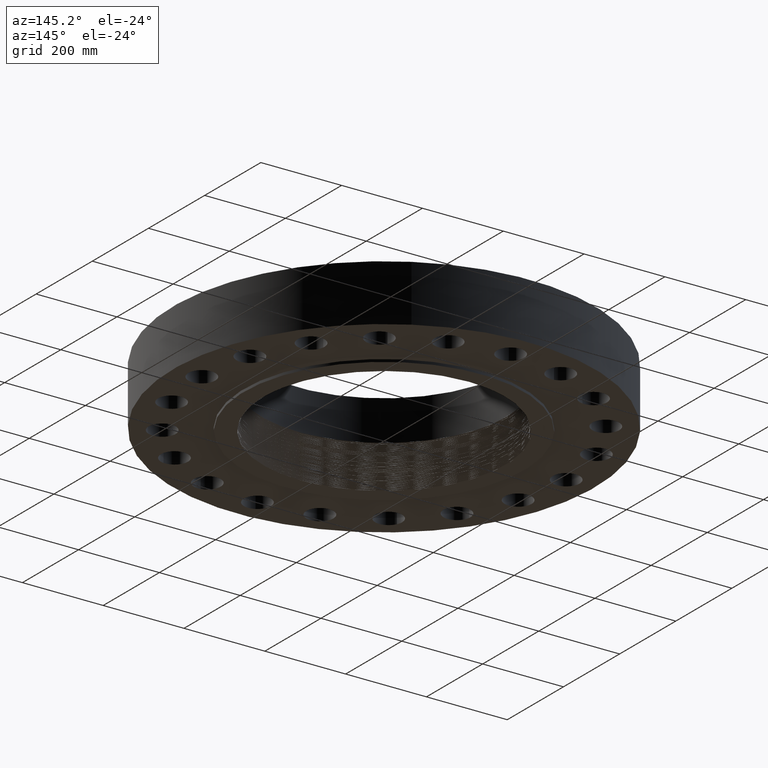
[diagram: clean part render]
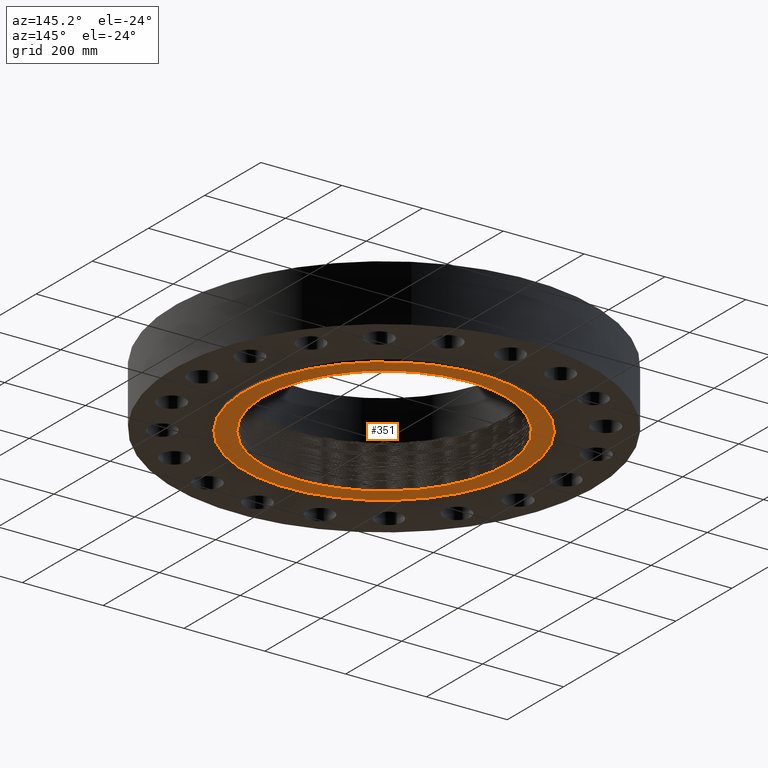
[diagram: same view with one face highlighted and labeled with its STEP entity id]
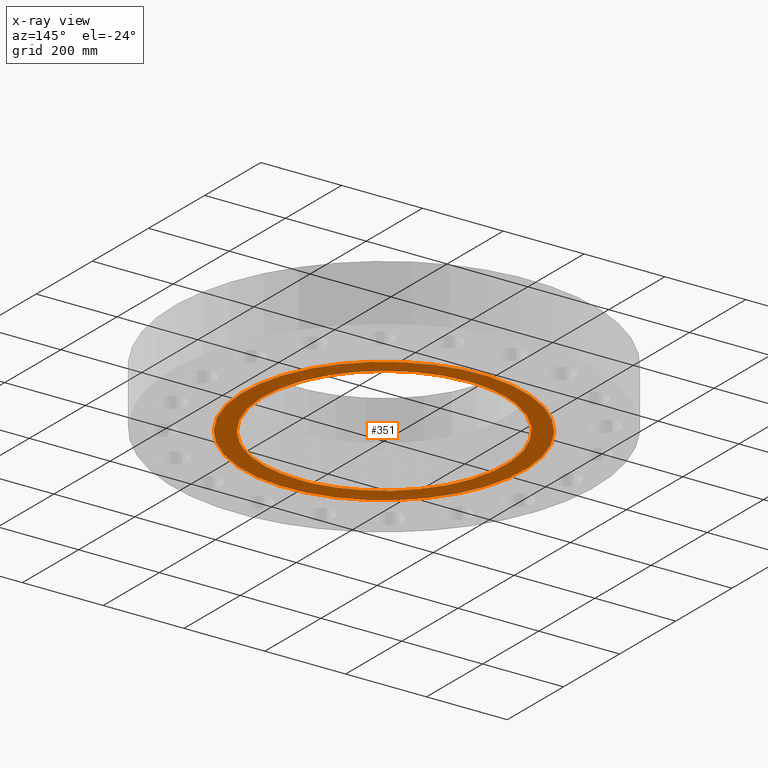
[diagram: x-ray of the same camera — body ghosted, the highlighted face saturated]
A machine part, auxiliary view. The second image highlights one B-rep face of the part: STEP entity #351.
The next image is the same camera in x-ray: the body ghosted, the highlighted face saturated — about 0% of this face is hidden behind the body in this view.
In plain terms, the highlighted planar face has unit normal (0, 0, -1).
Its self-contained STEP definition (entity closure, byte-faithful):
#198=AXIS2_PLACEMENT_3D('Plane Axis2P3D',#195,#196,#197) ;
#202=AXIS2_PLACEMENT_3D('Circle Axis2P3D',#200,#201,$) ;
#211=AXIS2_PLACEMENT_3D('Circle Axis2P3D',#209,#210,$) ;
#339=AXIS2_PLACEMENT_3D('Circle Axis2P3D',#337,#338,$) ;
#195=CARTESIAN_POINT('Axis2P3D Location',(0.,0.,-0.250000000001)) ;
#200=CARTESIAN_POINT('Axis2P3D Location',(0.,0.,-0.250000000001)) ;
#204=CARTESIAN_POINT('Vertex',(6.53217296351,11.9570624058,-0.250000000001)) ;
#206=CARTESIAN_POINT('Vertex',(-6.53217296351,-11.9570624058,-0.250000000001)) ;
#209=CARTESIAN_POINT('Axis2P3D Location',(0.,0.,-0.250000000001)) ;
#219=CARTESIAN_POINT('Control Point',(-0.40067917141,-11.742080255,-0.250000000001)) ;
#220=CARTESIAN_POINT('Control Point',(-0.320580324469,-11.745020565,-0.250000000001)) ;
#221=CARTESIAN_POINT('Control Point',(-0.240455237118,-11.747277888,-0.250000000001)) ;
#222=CARTESIAN_POINT('Control Point',(-0.160311765019,-11.7488519097,-0.250000000001)) ;
#223=CARTESIAN_POINT('Control Point',(-0.0801577796731,-11.7497424508,-0.250000000001)) ;
#224=CARTESIAN_POINT('Control Point',(-1.16580655687E-006,-11.7499494673,-0.250000000001)) ;
#225=CARTESIAN_POINT('Vertex',(-0.400679172377,-11.7420802446,-0.249999999994)) ;
#227=CARTESIAN_POINT('Vertex',(-1.16580655387E-006,-11.7499494673,-0.250000000001)) ;
#231=CARTESIAN_POINT('Control Point',(5.64049903507,-10.3248662781,-0.250000000001)) ;
#232=CARTESIAN_POINT('Control Point',(5.01537148239,-10.6642843557,-0.250000000001)) ;
#233=CARTESIAN_POINT('Control Point',(4.36463360789,-10.9564348584,-0.250000000001)) ;
#234=CARTESIAN_POINT('Control Point',(3.6930570051,-11.1987257352,-0.250000000001)) ;
#235=CARTESIAN_POINT('Control Point',(2.55678007978,-11.5138177216,-0.250000000001)) ;
#236=CARTESIAN_POINT('Control Point',(1.39220667039,-11.6846869741,-0.250000000001)) ;
#237=CARTESIAN_POINT('Control Point',(0.929052393091,-11.7293972463,-0.250000000001)) ;
#238=CARTESIAN_POINT('Control Point',(0.46447795823,-11.7511490541,-0.250000000001)) ;
#239=CARTESIAN_POINT('Control Point',(-1.16580655456E-006,-11.7499494673,-0.250000000001)) ;
#240=CARTESIAN_POINT('Vertex',(5.64049903507,-10.3248662781,-0.250000000001)) ;
#244=CARTESIAN_POINT('Control Point',(3.02398845072E-008,11.8452805943,-0.250000000001)) ;
#245=CARTESIAN_POINT('Control Point',(0.713846267652,11.8434518853,-0.250000000001)) ;
#246=CARTESIAN_POINT('Control Point',(1.42748771021,11.7878487736,-0.250000000001)) ;
#247=CARTESIAN_POINT('Control Point',(2.13545128095,11.6784992219,-0.250000000001)) ;
#248=CARTESIAN_POINT('Control Point',(3.52944872093,11.3539855481,-0.250000000001)) ;
#249=CARTESIAN_POINT('Control Point',(4.85852499585,10.8244586763,-0.250000000001)) ;
#250=CARTESIAN_POINT('Control Point',(5.50181645314,10.5100131656,-0.250000000001)) ;
#251=CARTESIAN_POINT('Control Point',(6.73598979826,9.78664711616,-0.250000000001)) ;
#252=CARTESIAN_POINT('Control Point',(7.84752071965,8.88668367624,-0.250000000001)) ;
#253=CARTESIAN_POINT('Control Point',(8.3682599358,8.395572906,-0.250000000001)) ;
#254=CARTESIAN_POINT('Control Point',(9.33150266282,7.33881197776,-0.250000000001)) ;
#255=CARTESIAN_POINT('Control Point',(10.1253551627,6.14958129492,-0.250000000001)) ;
#256=CARTESIAN_POINT('Control Point',(10.4765595132,5.52617839463,-0.250000000001)) ;
#257=CARTESIAN_POINT('Control Point',(10.9307778967,4.55496383341,-0.250000000001)) ;
#258=CARTESIAN_POINT('Control Point',(11.2718506055,3.54087170578,-0.250000000001)) ;
#259=CARTESIAN_POINT('Control Point',(11.3727118157,3.19877423308,-0.250000000001)) ;
#260=CARTESIAN_POINT('Control Point',(11.6362874654,2.16205458899,-0.250000000001)) ;
#261=CARTESIAN_POINT('Control Point',(11.7815326716,1.1001131929,-0.250000000001)) ;
#262=CARTESIAN_POINT('Control Point',(11.8246348896,0.386292853334,-0.250000000001)) ;
#263=CARTESIAN_POINT('Control Point',(11.8027785861,-1.04231285437,-0.250000000001)) ;
#264=CARTESIAN_POINT('Control Point',(11.566809596,-2.45091561234,-0.250000000001)) ;
#265=CARTESIAN_POINT('Control Point',(11.3957745369,-3.14495352045,-0.250000000001)) ;
#266=CARTESIAN_POINT('Control Point',(10.9502906857,-4.50173977468,-0.250000000001)) ;
#267=CARTESIAN_POINT('Control Point',(10.3062729941,-5.77597825787,-0.250000000001)) ;
#268=CARTESIAN_POINT('Control Point',(9.93667766526,-6.38752047398,-0.250000000001)) ;
#269=CARTESIAN_POINT('Control Point',(9.10810761251,-7.54985883446,-0.250000000001)) ;
#270=CARTESIAN_POINT('Control Point',(8.11435053178,-8.57450662904,-0.250000000001)) ;
#271=CARTESIAN_POINT('Control Point',(7.5797031251,-9.04818934438,-0.250000000001)) ;
#272=CARTESIAN_POINT('Control Point',(6.86761082906,-9.58872990429,-0.250000000001)) ;
#273=CARTESIAN_POINT('Control Point',(6.10973121233,-10.0583585619,-0.250000000001)) ;
#274=CARTESIAN_POINT('Control Point',(5.95500878088,-10.1501892215,-0.250000000001)) ;
#275=CARTESIAN_POINT('Control Point',(5.79857206654,-10.2390392429,-0.250000000001)) ;
#276=CARTESIAN_POINT('Control Point',(5.64049903507,-10.3248662781,-0.250000000001)) ;
#277=CARTESIAN_POINT('Vertex',(3.02398965361E-008,11.8452805943,-0.250000000001)) ;
#281=CARTESIAN_POINT('Control Point',(3.02398950674E-008,11.8452805943,-0.250000000001)) ;
#282=CARTESIAN_POINT('Control Point',(-0.185982509091,11.8457570386,-0.250000000001)) ;
#283=CARTESIAN_POINT('Control Point',(-0.371978559485,11.8425833372,-0.250000000001)) ;
#284=CARTESIAN_POINT('Control Point',(-0.557892519967,11.8357591626,-0.250000000001)) ;
#285=CARTESIAN_POINT('Control Point',(-0.743628859711,11.8252879498,-0.250000000001)) ;
#286=CARTESIAN_POINT('Control Point',(-0.929092370205,11.8111768653,-0.250000000001)) ;
#287=CARTESIAN_POINT('Vertex',(-0.929092370205,11.8111768653,-0.250000000001)) ;
#291=CARTESIAN_POINT('Control Point',(-5.67329473644,10.3848960163,-0.250000000001)) ;
#292=CARTESIAN_POINT('Control Point',(-5.04818511723,10.7286990051,-0.250000000001)) ;
#293=CARTESIAN_POINT('Control Point',(-4.39709893303,11.0254309689,-0.250000000001)) ;
#294=CARTESIAN_POINT('Control Point',(-3.72476749004,11.2724782098,-0.250000000001)) ;
#295=CARTESIAN_POINT('Control Point',(-2.76182649391,11.545890681,-0.250000000001)) ;
#296=CARTESIAN_POINT('Control Point',(-1.7776875548,11.7162804028,-0.250000000001)) ;
#297=CARTESIAN_POINT('Control Point',(-1.49575744665,11.7564116352,-0.250000000001)) ;
#298=CARTESIAN_POINT('Control Point',(-1.2127787613,11.788053261,-0.250000000001)) ;
#299=CARTESIAN_POINT('Control Point',(-0.929092370205,11.8111768653,-0.250000000001)) ;
#300=CARTESIAN_POINT('Vertex',(-5.67329473644,10.3848960163,-0.250000000001)) ;
#304=CARTESIAN_POINT('Control Point',(-5.67329473644,10.3848960163,-0.250000000001)) ;
#305=CARTESIAN_POINT('Control Point',(-6.29846607542,10.0410590825,-0.250000000001)) ;
#306=CARTESIAN_POINT('Control Point',(-6.897655524,9.65014190604,-0.250000000001)) ;
#307=CARTESIAN_POINT('Control Point',(-7.46607956664,9.21479052029,-0.250000000001)) ;
#308=CARTESIAN_POINT('Control Point',(-8.53290263878,8.26178316524,-0.250000000001)) ;
#309=CARTESIAN_POINT('Control Point',(-9.44440930919,7.16004526764,-0.250000000001)) ;
#310=CARTESIAN_POINT('Control Point',(-9.85767681784,6.57579088612,-0.250000000001)) ;
#311=CARTESIAN_POINT('Control Point',(-10.5928705539,5.34957751042,-0.250000000001)) ;
#312=CARTESIAN_POINT('Control Point',(-11.1357105311,4.02729291701,-0.250000000001)) ;
#313=CARTESIAN_POINT('Control Point',(-11.3566518118,3.34690239929,-0.250000000001)) ;
#314=CARTESIAN_POINT('Control Point',(-11.694118191,1.95827179115,-0.250000000001)) ;
#315=CARTESIAN_POINT('Control Point',(-11.819379082,0.5347998443,-0.250000000001)) ;
#316=CARTESIAN_POINT('Control Point',(-11.8280771092,-0.180230032137,-0.250000000001)) ;
#317=CARTESIAN_POINT('Control Point',(-11.7544499128,-1.33869386654,-0.250000000001)) ;
#318=CARTESIAN_POINT('Control Point',(-11.5402077883,-2.47741356031,-0.250000000001)) ;
#319=CARTESIAN_POINT('Control Point',(-11.4372040441,-2.91108440268,-0.250000000001)) ;
#320=CARTESIAN_POINT('Control Point',(-11.1165690352,-4.02437469023,-0.250000000001)) ;
#321=CARTESIAN_POINT('Control Point',(-10.6616140379,-5.09163394924,-0.250000000001)) ;
#322=CARTESIAN_POINT('Control Point',(-10.3325163388,-5.72587953433,-0.250000000001)) ;
#323=CARTESIAN_POINT('Control Point',(-9.58108952374,-6.93974911497,-0.250000000001)) ;
#324=CARTESIAN_POINT('Control Point',(-8.65621412165,-8.02652499602,-0.250000000001)) ;
#325=CARTESIAN_POINT('Control Point',(-8.15350467925,-8.53389325143,-0.250000000001)) ;
#326=CARTESIAN_POINT('Control Point',(-7.07545644687,-9.46864183202,-0.250000000001)) ;
#327=CARTESIAN_POINT('Control Point',(-5.86941306408,-10.2306314913,-0.250000000001)) ;
#328=CARTESIAN_POINT('Control Point',(-5.23871836108,-10.565227881,-0.250000000001)) ;
#329=CARTESIAN_POINT('Control Point',(-4.10852599856,-11.0591629057,-0.250000000001)) ;
#330=CARTESIAN_POINT('Control Point',(-2.92521761422,-11.401276424,-0.250000000001)) ;
#331=CARTESIAN_POINT('Control Point',(-2.41870579513,-11.51785561,-0.250000000001)) ;
#332=CARTESIAN_POINT('Control Point',(-1.90678949308,-11.6062503868,-0.250000000001)) ;
#333=CARTESIAN_POINT('Control Point',(-1.39157259797,-11.6662127545,-0.250000000001)) ;
#334=CARTESIAN_POINT('Vertex',(-1.3915725825,-11.6662126681,-0.249999999903)) ;
#337=CARTESIAN_POINT('Axis2P3D Location',(-5.59482469102E-015,1.39870617276E-015,-0.250000000001)) ;
#196=DIRECTION('Axis2P3D Direction',(0.,0.,-0.0393700787402)) ;
#197=DIRECTION('Axis2P3D XDirection',(0.0393700787402,0.,0.)) ;
#201=DIRECTION('Axis2P3D Direction',(0.,0.,-0.0393700787402)) ;
#210=DIRECTION('Axis2P3D Direction',(0.,0.,-0.0393700787402)) ;
#338=DIRECTION('Axis2P3D Direction',(0.,0.,-0.0393700787402)) ;
#215=ORIENTED_EDGE('',*,*,#208,.T.) ;
#216=ORIENTED_EDGE('',*,*,#213,.T.) ;
#343=ORIENTED_EDGE('',*,*,#229,.T.) ;
#344=ORIENTED_EDGE('',*,*,#242,.F.) ;
#345=ORIENTED_EDGE('',*,*,#279,.F.) ;
#346=ORIENTED_EDGE('',*,*,#289,.T.) ;
#347=ORIENTED_EDGE('',*,*,#302,.F.) ;
#348=ORIENTED_EDGE('',*,*,#336,.T.) ;
#349=ORIENTED_EDGE('',*,*,#341,.F.) ;
#350=FACE_BOUND('',#342,.T.) ;
#351=ADVANCED_FACE('PartBody',(#217,#350),#199,.T.) ;
#218=B_SPLINE_CURVE_WITH_KNOTS('',5,(#219,#220,#221,#222,#223,#224),.UNSPECIFIED.,.F.,.U.,(6,6),(18.1235209865,32.5482376702),.UNSPECIFIED.) ;
#230=B_SPLINE_CURVE_WITH_KNOTS('',5,(#231,#232,#233,#234,#235,#236,#237,#238,#239),.UNSPECIFIED.,.F.,.U.,(6,3,6),(0.,127.926838964,211.512951781),.UNSPECIFIED.) ;
#243=B_SPLINE_CURVE_WITH_KNOTS('',5,(#244,#245,#246,#247,#248,#249,#250,#251,#252,#253,#254,#255,#256,#257,#258,#259,#260,#261,#262,#263,#264,#265,#266,#267,#268,#269,#270,#271,#272,#273,#274,#275,#276),.UNSPECIFIED.,.F.,.U.,(6,3,3,3,3,3,3,3,3,3,6),(0.,127.954030745,255.955492698,383.977474673,511.957894915,575.930623969,703.87767628,831.865001141,959.862940625,1087.82167481,1120.16992622),.UNSPECIFIED.) ;
#280=B_SPLINE_CURVE_WITH_KNOTS('',5,(#281,#282,#283,#284,#285,#286),.UNSPECIFIED.,.F.,.U.,(6,6),(0.,33.3366127162),.UNSPECIFIED.) ;
#290=B_SPLINE_CURVE_WITH_KNOTS('',5,(#291,#292,#293,#294,#295,#296,#297,#298,#299),.UNSPECIFIED.,.F.,.U.,(6,3,6),(0.,127.941481038,178.955094416),.UNSPECIFIED.) ;
#303=B_SPLINE_CURVE_WITH_KNOTS('',5,(#304,#305,#306,#307,#308,#309,#310,#311,#312,#313,#314,#315,#316,#317,#318,#319,#320,#321,#322,#323,#324,#325,#326,#327,#328,#329,#330,#331,#332,#333),.UNSPECIFIED.,.F.,.U.,(6,3,3,3,3,3,3,3,3,6),(0.,127.954113241,255.950718867,383.960154525,511.932396893,591.901523345,719.878818614,847.905389772,975.929164901,1069.29820058),.UNSPECIFIED.) ;
#203=CIRCLE('generated circle',#202,13.6250000001) ;
#212=CIRCLE('generated circle',#211,13.6250000001) ;
#340=CIRCLE('generated circle',#339,11.7489145145) ;
#208=EDGE_CURVE('',#205,#207,#203,.T.) ;
#213=EDGE_CURVE('',#207,#205,#212,.T.) ;
#229=EDGE_CURVE('',#226,#228,#218,.T.) ;
#242=EDGE_CURVE('',#241,#228,#230,.T.) ;
#279=EDGE_CURVE('',#278,#241,#243,.T.) ;
#289=EDGE_CURVE('',#278,#288,#280,.T.) ;
#302=EDGE_CURVE('',#301,#288,#290,.T.) ;
#336=EDGE_CURVE('',#301,#335,#303,.T.) ;
#341=EDGE_CURVE('',#226,#335,#340,.T.) ;
#214=EDGE_LOOP('',(#215,#216)) ;
#342=EDGE_LOOP('',(#343,#344,#345,#346,#347,#348,#349)) ;
#217=FACE_OUTER_BOUND('',#214,.T.) ;
#199=PLANE('',#198) ;
#205=VERTEX_POINT('',#204) ;
#207=VERTEX_POINT('',#206) ;
#226=VERTEX_POINT('',#225) ;
#228=VERTEX_POINT('',#227) ;
#241=VERTEX_POINT('',#240) ;
#278=VERTEX_POINT('',#277) ;
#288=VERTEX_POINT('',#287) ;
#301=VERTEX_POINT('',#300) ;
#335=VERTEX_POINT('',#334) ;